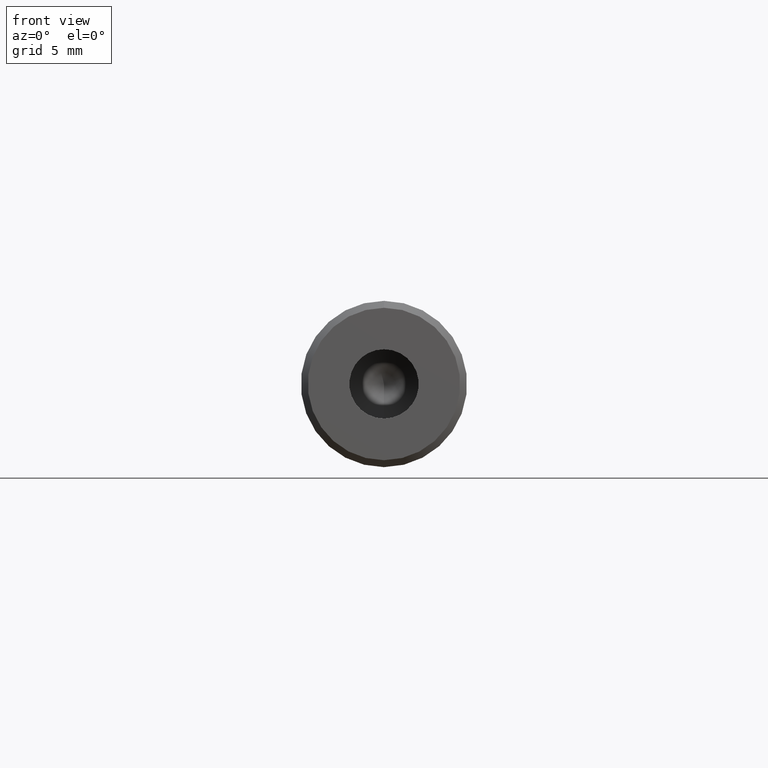
[diagram: clean part render]
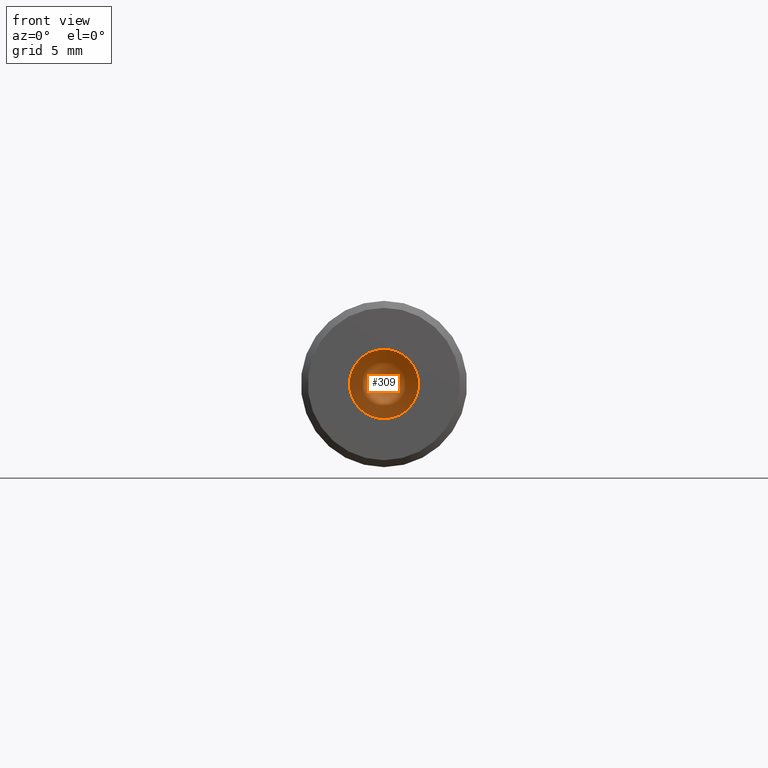
[diagram: same view with one face highlighted and labeled with its STEP entity id]
A machine part, front view. The second image highlights one B-rep face of the part: STEP entity #309.
In plain terms, the highlighted conical surface has half-angle 59 deg.
Its self-contained STEP definition (entity closure, byte-faithful):
#11 = AXIS2_PLACEMENT_3D ( 'NONE', #279, #66, #117 ) ;
#30 = ORIENTED_EDGE ( 'NONE', *, *, #45, .T. ) ;
#45 = EDGE_CURVE ( 'NONE', #301, #301, #257, .T. ) ;
#48 = FACE_OUTER_BOUND ( 'NONE', #126, .T. ) ;
#63 = DIRECTION ( 'NONE',  ( 0.000000000000000000, 0.000000000000000000, -1.000000000000000000 ) ) ;
#66 = DIRECTION ( 'NONE',  ( -0.000000000000000000, -1.000000000000000000, -0.000000000000000000 ) ) ;
#94 = CARTESIAN_POINT ( 'NONE',  ( 0.000000000000000000, 11.00000000000000000, -2.499999999999998224 ) ) ;
#117 = DIRECTION ( 'NONE',  ( 0.000000000000000000, 0.000000000000000000, -1.000000000000000000 ) ) ;
#126 = EDGE_LOOP ( 'NONE', ( #30 ) ) ;
#155 = CONICAL_SURFACE ( 'NONE', #179, 2.499999999997726263, 1.029744258685237446 ) ;
#179 = AXIS2_PLACEMENT_3D ( 'NONE', #188, #235, #63 ) ;
#188 = CARTESIAN_POINT ( 'NONE',  ( 0.000000000000000000, 11.00000000002410161, 0.000000000000000000 ) ) ;
#235 = DIRECTION ( 'NONE',  ( 0.000000000000000000, -1.000000000000000000, 0.000000000000000000 ) ) ;
#257 = CIRCLE ( 'NONE', #11, 2.499999999999998224 ) ;
#279 = CARTESIAN_POINT ( 'NONE',  ( 0.000000000000000000, 11.00000000000000000, 0.000000000000000000 ) ) ;
#301 = VERTEX_POINT ( 'NONE', #94 ) ;
#309 = ADVANCED_FACE ( 'NONE', ( #48 ), #155, .F. ) ;